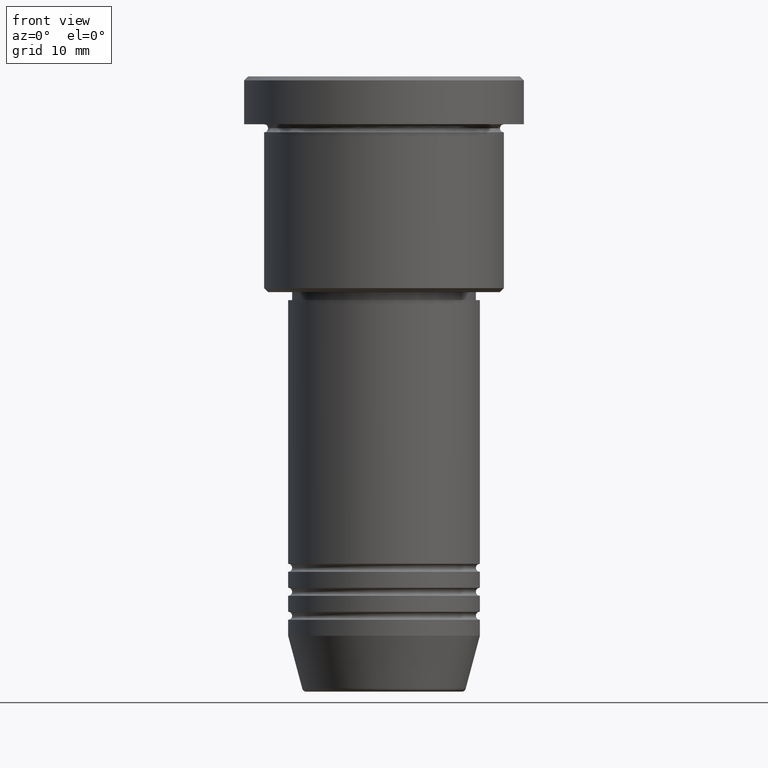
[diagram: clean part render]
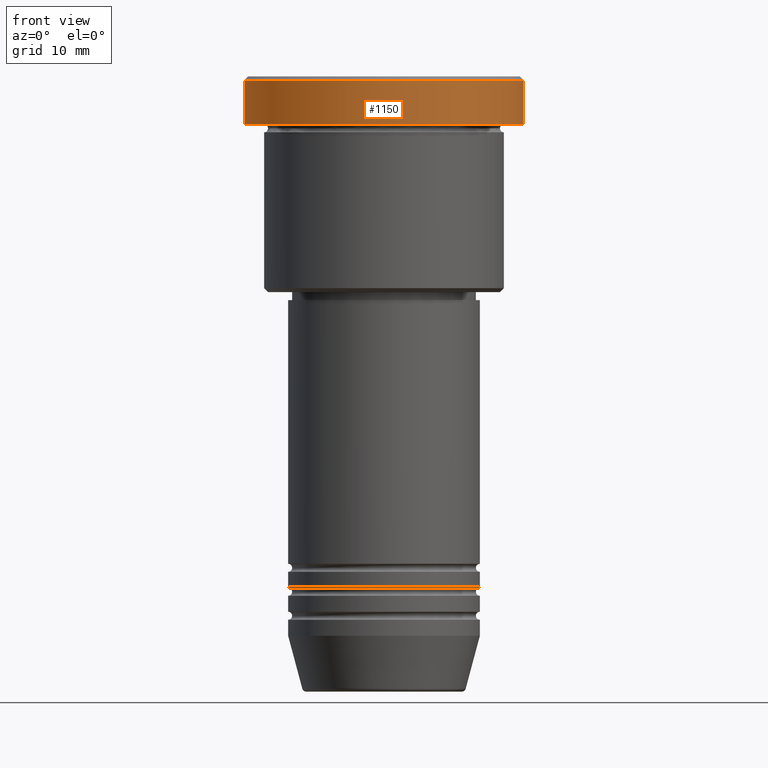
[diagram: same view with one face highlighted and labeled with its STEP entity id]
A machine part, front view. The second image highlights one B-rep face of the part: STEP entity #1150.
In plain terms, the highlighted cylindrical surface (partial cylindrical patch) has radius 17.5 mm, axis along (-0, -0, 1).
Its self-contained STEP definition (entity closure, byte-faithful):
#75 = VERTEX_POINT ( 'NONE', #391 ) ;
#117 = VERTEX_POINT ( 'NONE', #731 ) ;
#121 = ORIENTED_EDGE ( 'NONE', *, *, #680, .T. ) ;
#226 = LINE ( 'NONE', #751, #817 ) ;
#244 = DIRECTION ( 'NONE',  ( 1.000000000000000000, 0.000000000000000000, 0.000000000000000000 ) ) ;
#254 = AXIS2_PLACEMENT_3D ( 'NONE', #602, #794, #429 ) ;
#256 = ORIENTED_EDGE ( 'NONE', *, *, #754, .T. ) ;
#270 = CARTESIAN_POINT ( 'NONE',  ( -17.50000000000000000, 2.143131898507868248E-15, 0.000000000000000000 ) ) ;
#277 = ORIENTED_EDGE ( 'NONE', *, *, #369, .F. ) ;
#312 = AXIS2_PLACEMENT_3D ( 'NONE', #338, #946, #244 ) ;
#333 = DIRECTION ( 'NONE',  ( -0.000000000000000000, -0.000000000000000000, 1.000000000000000000 ) ) ;
#338 = CARTESIAN_POINT ( 'NONE',  ( 0.000000000000000000, 0.000000000000000000, 0.000000000000000000 ) ) ;
#369 = EDGE_CURVE ( 'NONE', #117, #545, #1087, .T. ) ;
#391 = CARTESIAN_POINT ( 'NONE',  ( 17.50000000000000000, 0.000000000000000000, -5.999999999999995559 ) ) ;
#429 = DIRECTION ( 'NONE',  ( 1.000000000000000000, 0.000000000000000000, 0.000000000000000000 ) ) ;
#432 = DIRECTION ( 'NONE',  ( 1.000000000000000000, 0.000000000000000000, 0.000000000000000000 ) ) ;
#452 = CIRCLE ( 'NONE', #611, 17.50000000000000000 ) ;
#527 = CARTESIAN_POINT ( 'NONE',  ( 0.000000000000000000, 0.000000000000000000, -5.999999999999995559 ) ) ;
#545 = VERTEX_POINT ( 'NONE', #586 ) ;
#586 = CARTESIAN_POINT ( 'NONE',  ( -17.50000000000000000, 2.143131898507868248E-15, -0.4999999999999726885 ) ) ;
#602 = CARTESIAN_POINT ( 'NONE',  ( 0.000000000000000000, 0.000000000000000000, -0.4999999999999726885 ) ) ;
#611 = AXIS2_PLACEMENT_3D ( 'NONE', #527, #333, #432 ) ;
#639 = EDGE_LOOP ( 'NONE', ( #277, #256, #747, #121 ) ) ;
#680 = EDGE_CURVE ( 'NONE', #1140, #545, #836, .T. ) ;
#724 = DIRECTION ( 'NONE',  ( -0.000000000000000000, -0.000000000000000000, 1.000000000000000000 ) ) ;
#731 = CARTESIAN_POINT ( 'NONE',  ( -17.50000000000000000, 2.143131898507868248E-15, -5.999999999999995559 ) ) ;
#747 = ORIENTED_EDGE ( 'NONE', *, *, #1048, .T. ) ;
#748 = DIRECTION ( 'NONE',  ( -0.000000000000000000, -0.000000000000000000, 1.000000000000000000 ) ) ;
#751 = CARTESIAN_POINT ( 'NONE',  ( 17.50000000000000000, 0.000000000000000000, 0.000000000000000000 ) ) ;
#754 = EDGE_CURVE ( 'NONE', #117, #75, #452, .T. ) ;
#794 = DIRECTION ( 'NONE',  ( 0.000000000000000000, 0.000000000000000000, -1.000000000000000000 ) ) ;
#817 = VECTOR ( 'NONE', #748, 1000.000000000000000 ) ;
#836 = CIRCLE ( 'NONE', #254, 17.50000000000000000 ) ;
#946 = DIRECTION ( 'NONE',  ( -0.000000000000000000, -0.000000000000000000, 1.000000000000000000 ) ) ;
#1043 = FACE_OUTER_BOUND ( 'NONE', #639, .T. ) ;
#1048 = EDGE_CURVE ( 'NONE', #75, #1140, #226, .T. ) ;
#1075 = VECTOR ( 'NONE', #724, 1000.000000000000000 ) ;
#1087 = LINE ( 'NONE', #270, #1075 ) ;
#1129 = CARTESIAN_POINT ( 'NONE',  ( 17.50000000000000000, 0.000000000000000000, -0.4999999999999726885 ) ) ;
#1140 = VERTEX_POINT ( 'NONE', #1129 ) ;
#1146 = CYLINDRICAL_SURFACE ( 'NONE', #312, 17.50000000000000000 ) ;
#1150 = ADVANCED_FACE ( 'NONE', ( #1043 ), #1146, .T. ) ;